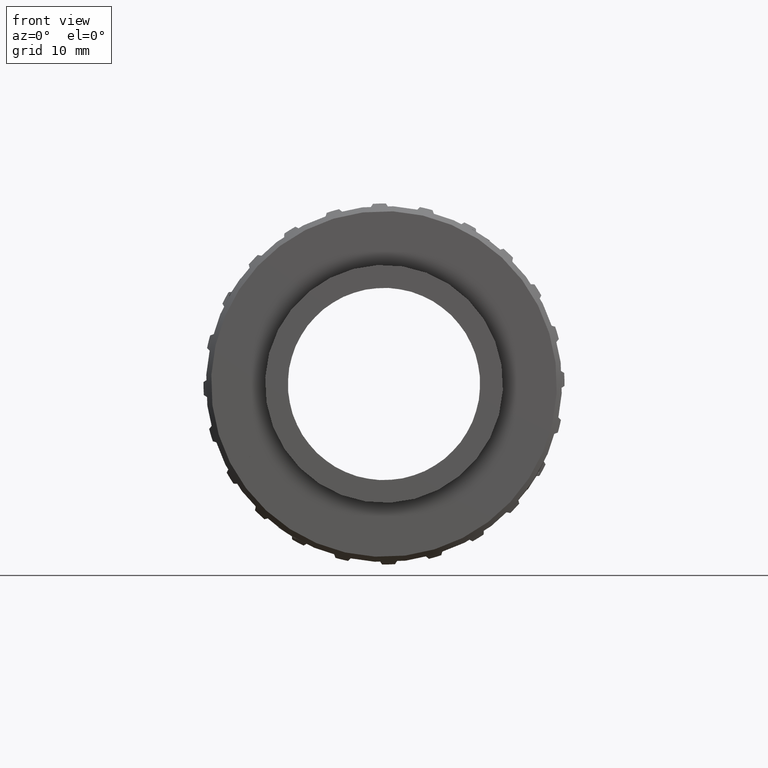
[diagram: clean part render]
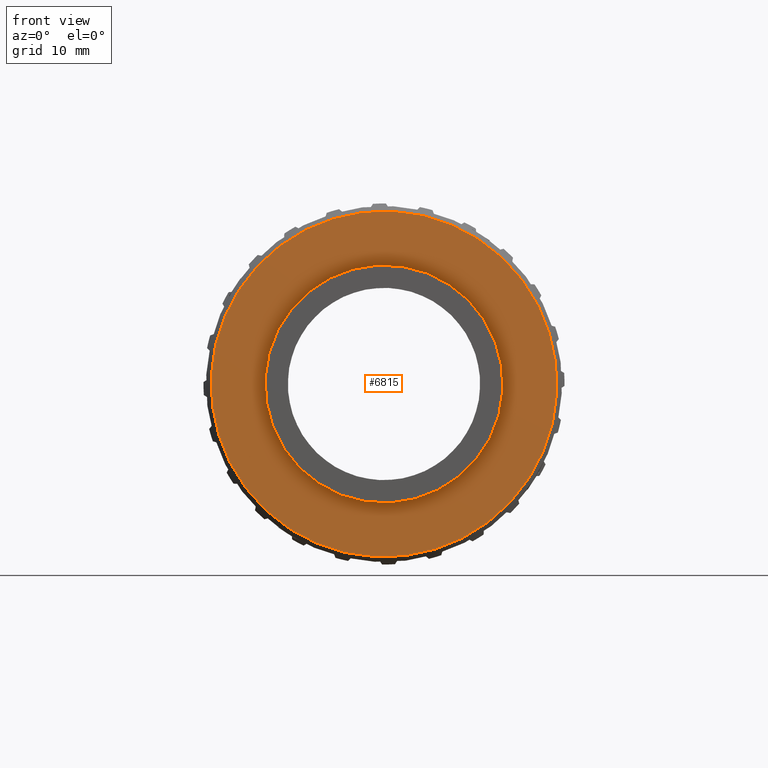
[diagram: same view with one face highlighted and labeled with its STEP entity id]
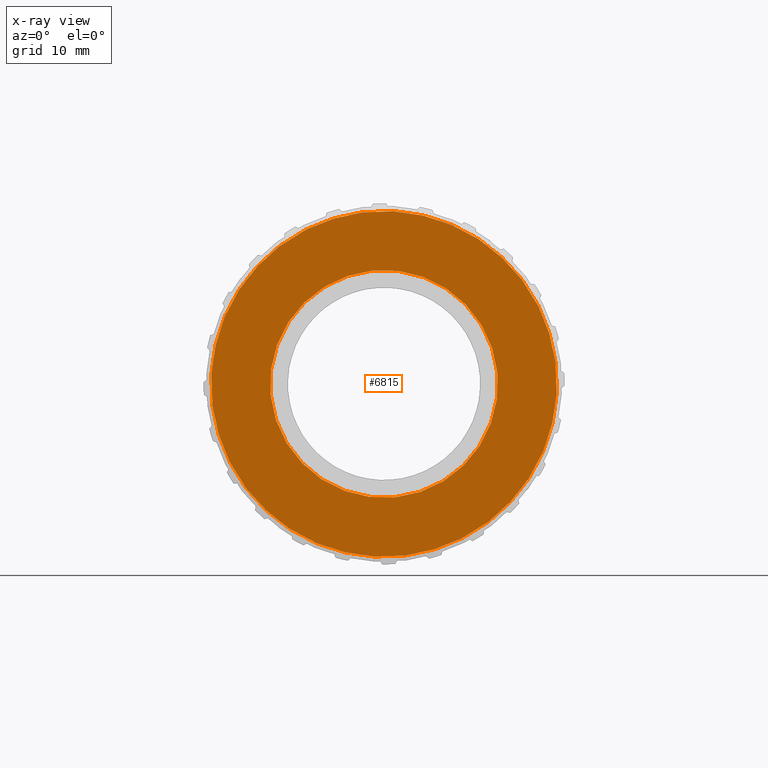
[diagram: x-ray of the same camera — body ghosted, the highlighted face saturated]
A machine part, front view. The second image highlights one B-rep face of the part: STEP entity #6815.
The next image is the same camera in x-ray: the body ghosted, the highlighted face saturated — about 0% of this face is hidden behind the body in this view.
In plain terms, the highlighted planar face has unit normal (0, 1, 0).
Its self-contained STEP definition (entity closure, byte-faithful):
#3912 = CARTESIAN_POINT ( 'NONE',  ( 0.0000000000000000000, -9.799999999999995400, 0.0000000000000000000 ) ) ;
#5526 = DIRECTION ( 'NONE',  ( 0.0000000000000000000, -1.000000000000000000, 0.0000000000000000000 ) ) ;
#6815 = ADVANCED_FACE ( 'NONE', ( #29281, #37163 ), #37529, .F. ) ;
#8557 = AXIS2_PLACEMENT_3D ( 'NONE', #65975, #24634, #99249 ) ;
#13714 = DIRECTION ( 'NONE',  ( -0.0000000000000000000, 1.000000000000000000, 0.0000000000000000000 ) ) ;
#17004 = EDGE_CURVE ( 'NONE', #66567, #23609, #37709, .T. ) ;
#20337 = DIRECTION ( 'NONE',  ( 0.0000000000000000000, 0.0000000000000000000, 1.000000000000000000 ) ) ;
#23609 = VERTEX_POINT ( 'NONE', #84154 ) ;
#24634 = DIRECTION ( 'NONE',  ( -0.0000000000000000000, 1.000000000000000000, -0.0000000000000000000 ) ) ;
#28222 = DIRECTION ( 'NONE',  ( 0.0000000000000000000, -1.000000000000000000, 0.0000000000000000000 ) ) ;
#29281 = FACE_OUTER_BOUND ( 'NONE', #107879, .T. ) ;
#29332 = CARTESIAN_POINT ( 'NONE',  ( 0.0000000000000000000, -9.799999999999997200, 0.0000000000000000000 ) ) ;
#29507 = DIRECTION ( 'NONE',  ( 0.0000000000000000000, 0.0000000000000000000, 1.000000000000000000 ) ) ;
#30815 = AXIS2_PLACEMENT_3D ( 'NONE', #3912, #62425, #29507 ) ;
#31561 = ORIENTED_EDGE ( 'NONE', *, *, #96652, .T. ) ;
#36641 = DIRECTION ( 'NONE',  ( 0.0000000000000000000, 0.0000000000000000000, 1.000000000000000000 ) ) ;
#37163 = FACE_BOUND ( 'NONE', #71603, .T. ) ;
#37529 = PLANE ( 'NONE',  #50834 ) ;
#37709 = CIRCLE ( 'NONE', #30815, 11.20000000000000500 ) ;
#40026 = VERTEX_POINT ( 'NONE', #100233 ) ;
#50834 = AXIS2_PLACEMENT_3D ( 'NONE', #96068, #13714, #20337 ) ;
#59984 = EDGE_CURVE ( 'NONE', #23609, #66567, #106786, .T. ) ;
#61475 = AXIS2_PLACEMENT_3D ( 'NONE', #69930, #28222, #36641 ) ;
#62425 = DIRECTION ( 'NONE',  ( -0.0000000000000000000, 1.000000000000000000, -0.0000000000000000000 ) ) ;
#65975 = CARTESIAN_POINT ( 'NONE',  ( 0.0000000000000000000, -9.799999999999995400, 0.0000000000000000000 ) ) ;
#66567 = VERTEX_POINT ( 'NONE', #96881 ) ;
#68931 = ORIENTED_EDGE ( 'NONE', *, *, #59984, .T. ) ;
#69930 = CARTESIAN_POINT ( 'NONE',  ( 0.0000000000000000000, -9.799999999999997200, 0.0000000000000000000 ) ) ;
#71603 = EDGE_LOOP ( 'NONE', ( #92333, #68931 ) ) ;
#78440 = CIRCLE ( 'NONE', #61475, 17.00000000000000000 ) ;
#84154 = CARTESIAN_POINT ( 'NONE',  ( 1.371604415045036100E-015, -9.799999999999995400, -11.20000000000000500 ) ) ;
#87863 = DIRECTION ( 'NONE',  ( 0.0000000000000000000, 0.0000000000000000000, 1.000000000000000000 ) ) ;
#89207 = CARTESIAN_POINT ( 'NONE',  ( 2.112515728529184100E-015, -9.799999999999997200, -17.00000000000000000 ) ) ;
#92333 = ORIENTED_EDGE ( 'NONE', *, *, #17004, .T. ) ;
#93600 = EDGE_CURVE ( 'NONE', #40026, #105458, #78440, .T. ) ;
#94488 = AXIS2_PLACEMENT_3D ( 'NONE', #29332, #5526, #87863 ) ;
#96068 = CARTESIAN_POINT ( 'NONE',  ( 17.50000000000000400, -9.799999999999997200, 0.0000000000000000000 ) ) ;
#96652 = EDGE_CURVE ( 'NONE', #105458, #40026, #103070, .T. ) ;
#96881 = CARTESIAN_POINT ( 'NONE',  ( 0.0000000000000000000, -9.799999999999995400, 11.20000000000000500 ) ) ;
#99249 = DIRECTION ( 'NONE',  ( 0.0000000000000000000, 0.0000000000000000000, 1.000000000000000000 ) ) ;
#100233 = CARTESIAN_POINT ( 'NONE',  ( 0.0000000000000000000, -9.799999999999997200, 17.00000000000000000 ) ) ;
#102559 = ORIENTED_EDGE ( 'NONE', *, *, #93600, .T. ) ;
#103070 = CIRCLE ( 'NONE', #94488, 17.00000000000000000 ) ;
#105458 = VERTEX_POINT ( 'NONE', #89207 ) ;
#106786 = CIRCLE ( 'NONE', #8557, 11.20000000000000500 ) ;
#107879 = EDGE_LOOP ( 'NONE', ( #102559, #31561 ) ) ;